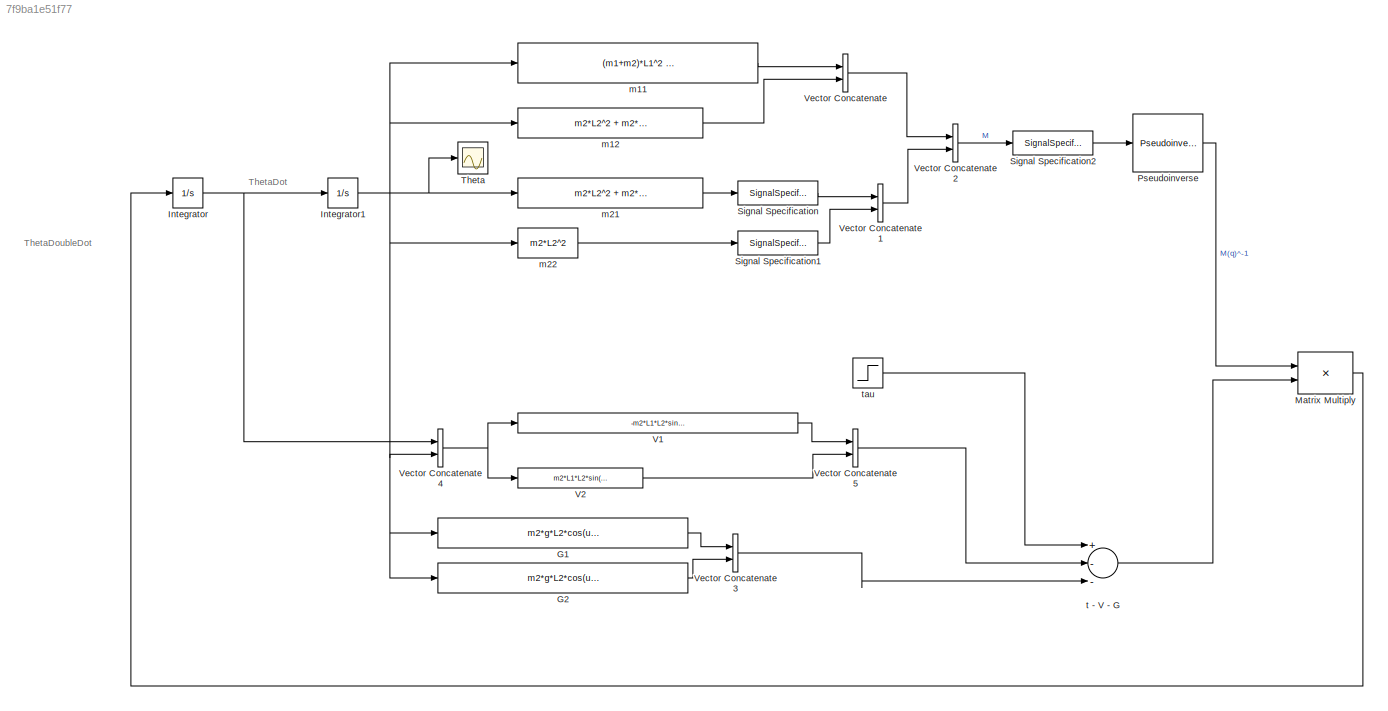
MODEL slx_7f9ba1e51f77
KIND model
CONFIG AbsTol = auto
CONFIG EnableMultiTasking = off
CONFIG FixedStep = auto
CONFIG MaxStep = auto
CONFIG MinStep = auto
CONFIG RelTol = 1e-3
CONFIG SampleTimeConstraint = Unconstrained
CONFIG Solver = VariableStepAuto
CONFIG SolverName = VariableStepAuto
CONFIG StartTime = 0.0
CONFIG StopTime = 10.0
BLOCK [Fcn] G1 
  Expr = m2*g*L2*cos(u(1)+u(2)) + (m1+m2)*g*L1*cos(u(1))
BLOCK [Fcn] G2
  Expr = m2*g*L2*cos(u(1)+u(2))
BLOCK [Integrator] Integrator
  Ports = [1, 1]
BLOCK [Integrator] Integrator1
  Ports = [1, 1]
BLOCK [Product] Matrix Multiply
  InputSameDT = off
  Multiplication = Matrix(*)
  OutDataTypeStr = Inherit: Inherit via internal rule
  Ports = [2, 1]
  RndMeth = Floor
  SaturateOnIntegerOverflow = off
BLOCK [Reference] Pseudoinverse  REF=dspinverses/Pseudoinverse
  Ports = [1, 1]
  SourceBlock = dspinverses/Pseudoinverse
  SourceProductBaseCode = DS
  SourceProductName = DSP System Toolbox
  SourceType = Pseudoinverse
BLOCK [SignalSpecification] Signal Specification
  Dimensions = [1,1]
BLOCK [SignalSpecification] Signal Specification1
  Dimensions = [1,1]
BLOCK [SignalSpecification] Signal Specification2
  Dimensions = [2,2]
BLOCK [Scope] Theta 
  NumInputPorts = 1
  Ports = [1]
  ScopeSpecificationString = Simulink.scopes.TimeScopeBlockCfg('CurrentConfiguration', extmgr.ConfigurationSet(extmgr.Configuration('Core','General UI',true),extmgr.Configuration('Core','Source UI',true),extmgr.Configuration('Sources','WiredSimulink',true),extmgr.Configuration('Visuals','Time Domain',true),extmgr.Configuration('Tools','Plot Navigation',true),extmgr.Configuration('Tools','Measurements',true)),'Version','2017a'...<+1ch>
BLOCK [Fcn] V1 
  Expr = -m2*L1*L2*sin(u(2))*u(4)^2 - 2*m2*L1*L2*sin(u(1))*u(3)*u(4)
BLOCK [Fcn] V2
  Expr = m2*L1*L2*sin(u(2))*u(3)^2
BLOCK [Concatenate] Vector Concatenate
  ConcatenateDimension = 2
  Mode = Multidimensional array
  Ports = [2, 1]
BLOCK [Concatenate] Vector Concatenate1
  ConcatenateDimension = 2
  Mode = Multidimensional array
  Ports = [2, 1]
BLOCK [Concatenate] Vector Concatenate2
  Mode = Multidimensional array
  Ports = [2, 1]
BLOCK [Concatenate] Vector Concatenate3
  Mode = Multidimensional array
  Ports = [2, 1]
BLOCK [Concatenate] Vector Concatenate4
  Ports = [2, 1]
BLOCK [Concatenate] Vector Concatenate5
  Ports = [2, 1]
BLOCK [Fcn] m11 
  Expr = (m1+m2)*L1^2 + m2*L2^2 + 2*m2*L1*L2*cos(u(2))
BLOCK [Fcn] m12 
  Expr = m2*L2^2 + m2*L1*L2*cos(u(2))
BLOCK [Fcn] m21 
  Expr = m2*L2^2 + m2*L1*L2*cos(u(2))
BLOCK [Fcn] m22 
  Expr = m2*L2^2
BLOCK [Sum] t - V - G
  InputSameDT = off
  Inputs = +--
  OutDataTypeStr = Inherit: Inherit via internal rule
  Ports = [3, 1]
  SaturateOnIntegerOverflow = off
BLOCK [Step] tau 
  SampleTime = 0
ANNOTATION (root): ThetaDot
ANNOTATION (root): ThetaDoubleDot
LINE G1 :1 -> Vector Concatenate3:1
LINE G2:1 -> Vector Concatenate3:2
NET Integrator1:1 -> G1 :1, G2:1, Theta :1, Vector Concatenate4:2, m11 :1, m12 :1, m21 :1, m22 :1
NET Integrator:1 -> Integrator1:1, Vector Concatenate4:1
LINE Matrix Multiply:1 -> Integrator:1
LINE Pseudoinverse:1 -> Matrix Multiply:1
LINE Signal Specification1:1 -> Vector Concatenate1:2
LINE Signal Specification2:1 -> Pseudoinverse:1
LINE Signal Specification:1 -> Vector Concatenate1:1
LINE V1 :1 -> Vector Concatenate5:1
LINE V2:1 -> Vector Concatenate5:2
LINE Vector Concatenate1:1 -> Vector Concatenate2:2
LINE Vector Concatenate2:1 -> Signal Specification2:1
LINE Vector Concatenate3:1 -> t - V - G:3
NET Vector Concatenate4:1 -> V1 :1, V2:1
LINE Vector Concatenate5:1 -> t - V - G:2
LINE Vector Concatenate:1 -> Vector Concatenate2:1
LINE m11 :1 -> Vector Concatenate:1
LINE m12 :1 -> Vector Concatenate:2
LINE m21 :1 -> Signal Specification:1
LINE m22 :1 -> Signal Specification1:1
LINE t - V - G:1 -> Matrix Multiply:2
LINE tau :1 -> t - V - G:1
note: NET lines group one-source signal fan-out (src -> all destinations, sorted); 1:1 wires keep LINE
